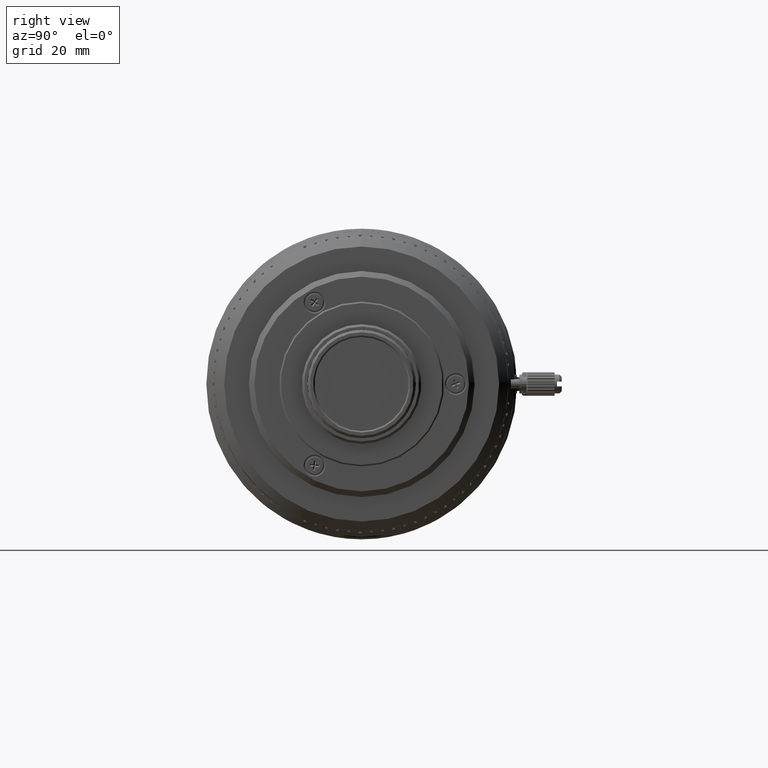
[diagram: clean part render]
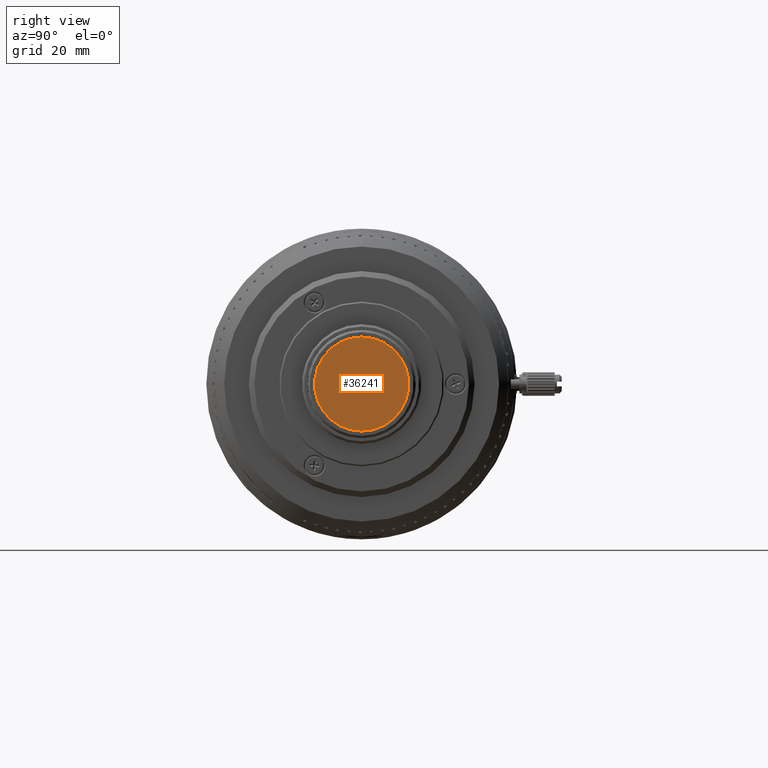
[diagram: same view with one face highlighted and labeled with its STEP entity id]
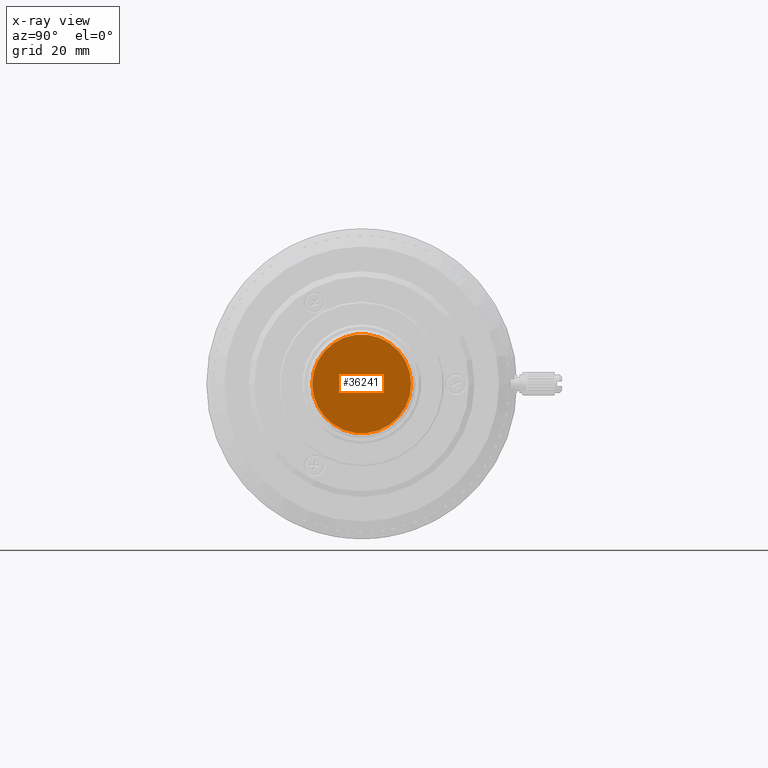
[diagram: x-ray of the same camera — body ghosted, the highlighted face saturated]
A machine part, right view. The second image highlights one B-rep face of the part: STEP entity #36241.
The next image is the same camera in x-ray: the body ghosted, the highlighted face saturated — about 0% of this face is hidden behind the body in this view.
In plain terms, the highlighted spherical surface has radius 580 mm.
Its self-contained STEP definition (entity closure, byte-faithful):
#1791 = CIRCLE ( 'NONE', #47617, 10.49999999989899990 ) ;
#1815 = DIRECTION ( 'NONE',  ( -0.9998309971640465532, -1.321646739417241751E-14, 0.01838415377297586070 ) ) ;
#9691 = VERTEX_POINT ( 'NONE', #85935 ) ;
#10005 = CARTESIAN_POINT ( 'NONE',  ( 117.4101018920701307, -1.355360268462401606E-12, 8.615330671091184461E-14 ) ) ;
#13881 = DIRECTION ( 'NONE',  ( -1.189524669252681217E-14, -1.000000000000000000, 0.000000000000000000 ) ) ;
#28338 = DIRECTION ( 'NONE',  ( -1.000000000000000000, 1.187897457077800045E-14, 1.247843006282399927E-15 ) ) ;
#32395 = ORIENTED_EDGE ( 'NONE', *, *, #54307, .F. ) ;
#36241 = ADVANCED_FACE ( 'NONE', ( #97109 ), #65173, .F. ) ;
#42117 = CIRCLE ( 'NONE', #65875, 10.49999999989899990 ) ;
#42512 = DIRECTION ( 'NONE',  ( -1.000000000000000000, 1.187897457077800045E-14, 1.247843006282399927E-15 ) ) ;
#46588 = VERTEX_POINT ( 'NONE', #47131 ) ;
#47131 = CARTESIAN_POINT ( 'NONE',  ( 117.4101018920702586, 10.49999999989764454, 9.098458233725900436E-14 ) ) ;
#47617 = AXIS2_PLACEMENT_3D ( 'NONE', #10005, #42512, #104752 ) ;
#48011 = EDGE_LOOP ( 'NONE', ( #94718, #32395 ) ) ;
#49205 = CARTESIAN_POINT ( 'NONE',  ( 697.3150510063693446, -3.476385845857521417E-10, 4.506386583336130514E-10 ) ) ;
#54307 = EDGE_CURVE ( 'NONE', #46588, #9691, #42117, .T. ) ;
#61379 = EDGE_CURVE ( 'NONE', #9691, #46588, #1791, .T. ) ;
#65173 = SPHERICAL_SURFACE ( 'NONE', #93465, 580.0000000062483423 ) ;
#65875 = AXIS2_PLACEMENT_3D ( 'NONE', #101191, #28338, #13881 ) ;
#82203 = DIRECTION ( 'NONE',  ( -0.01838415377297586070, -2.435306501562389967E-16, -0.9998309971640465532 ) ) ;
#85935 = CARTESIAN_POINT ( 'NONE',  ( 117.4101018920700028, -10.49999999990035526, 8.615330671091184461E-14 ) ) ;
#93465 = AXIS2_PLACEMENT_3D ( 'NONE', #49205, #82203, #1815 ) ;
#94718 = ORIENTED_EDGE ( 'NONE', *, *, #61379, .F. ) ;
#97109 = FACE_OUTER_BOUND ( 'NONE', #48011, .T. ) ;
#101191 = CARTESIAN_POINT ( 'NONE',  ( 117.4101018920701307, -1.355360268462401606E-12, 8.615330671091184461E-14 ) ) ;
#104752 = DIRECTION ( 'NONE',  ( -1.189524669252681217E-14, -1.000000000000000000, 0.000000000000000000 ) ) ;